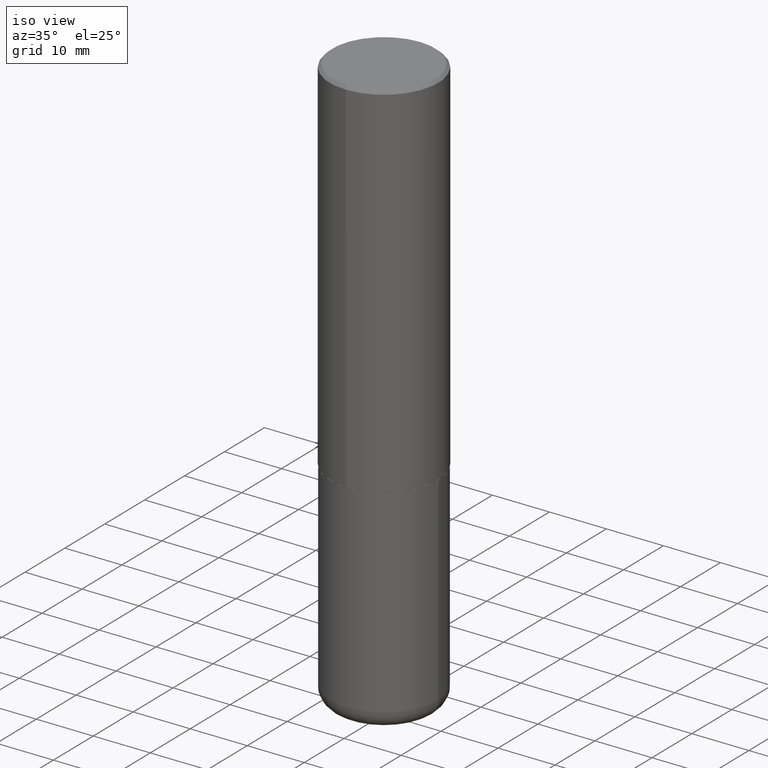
[diagram: clean part render]
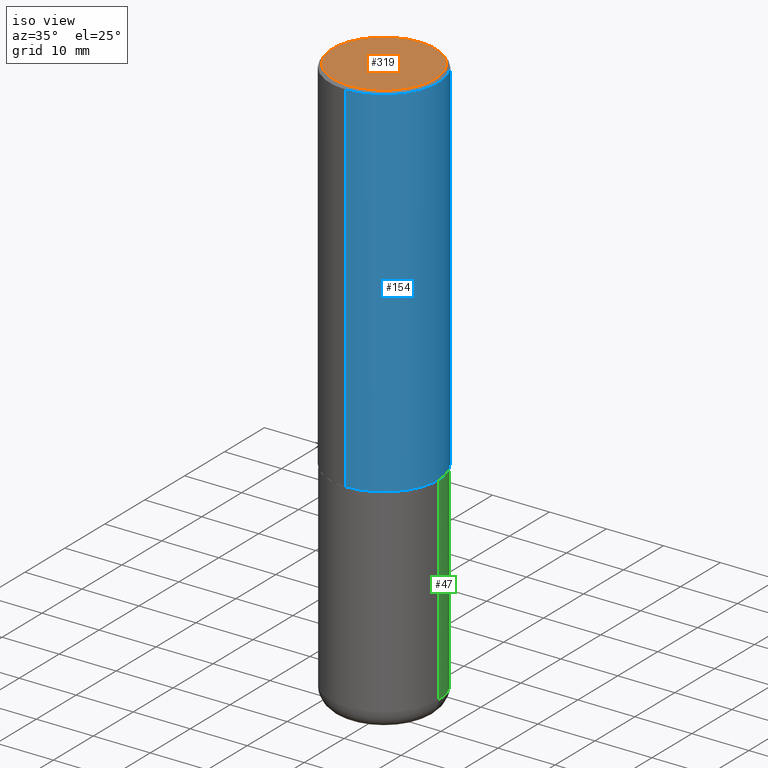
[diagram: same view with three faces highlighted in distinct colors, each labeled with its STEP entity id]
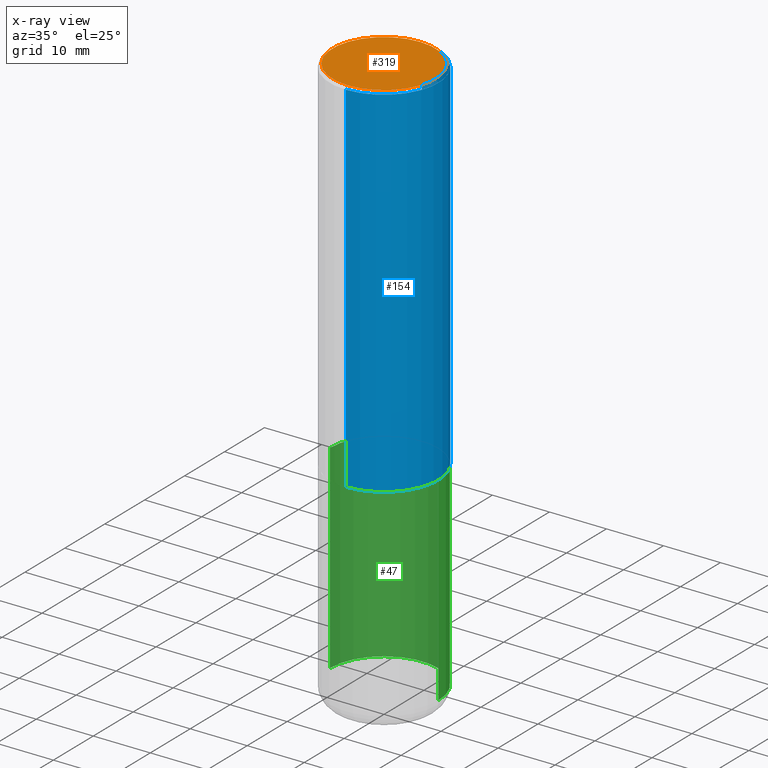
[diagram: x-ray of the same camera — body ghosted, the three highlighted faces saturated]
A machine part, iso view with three faces highlighted in distinct colors.
The next image is the same camera in x-ray (body ghosted, the three faces saturated) — at least one of them is partly hidden behind the body in this view.
Their STEP definitions:

[orange] entity #319 — the highlighted planar face has unit normal (0, -0, -1).
#6 = DIRECTION ( 'NONE',  ( 2.444465131706344694E-29, -3.492918657822378868E-15, -1.000000000000000000 ) ) ;
#23 = DIRECTION ( 'NONE',  ( -6.982962677686265922E-15, -1.000000000000000000, 3.492918657822378079E-15 ) ) ;
#25 = EDGE_CURVE ( 'NONE', #404, #343, #83, .T. ) ;
#26 = DIRECTION ( 'NONE',  ( 6.982962677686265922E-15, 1.000000000000000000, -3.492918657822378868E-15 ) ) ;
#32 = ORIENTED_EDGE ( 'NONE', *, *, #157, .T. ) ;
#43 = AXIS2_PLACEMENT_3D ( 'NONE', #405, #54, #23 ) ;
#54 = DIRECTION ( 'NONE',  ( -2.444465131706345255E-29, 3.492918657822378473E-15, 1.000000000000000000 ) ) ;
#78 = ORIENTED_EDGE ( 'NONE', *, *, #25, .T. ) ;
#83 = CIRCLE ( 'NONE', #114, 0.3549999999999999267 ) ;
#92 = CARTESIAN_POINT ( 'NONE',  ( -2.504081769186608216E-15, -0.3549999999999999267, 1.308792571606178433E-15 ) ) ;
#110 = DIRECTION ( 'NONE',  ( -2.444465131706345255E-29, 3.492918657822378473E-15, 1.000000000000000000 ) ) ;
#114 = AXIS2_PLACEMENT_3D ( 'NONE', #172, #110, #245 ) ;
#145 = CIRCLE ( 'NONE', #43, 0.3549999999999999267 ) ;
#157 = EDGE_CURVE ( 'NONE', #343, #404, #145, .T. ) ;
#158 = PLANE ( 'NONE',  #220 ) ;
#172 = CARTESIAN_POINT ( 'NONE',  ( -1.681949631662511627E-45, 2.403353262744440834E-31, 6.880644807923424831E-17 ) ) ;
#195 = FACE_OUTER_BOUND ( 'NONE', #239, .T. ) ;
#198 = CARTESIAN_POINT ( 'NONE',  ( 2.478951750578623815E-15, 0.3549999999999999267, -1.205582899487326820E-15 ) ) ;
#220 = AXIS2_PLACEMENT_3D ( 'NONE', #198, #6, #26 ) ;
#224 = CARTESIAN_POINT ( 'NONE',  ( 2.548781377355487113E-15, 0.3549999999999999267, -1.171179675447709813E-15 ) ) ;
#239 = EDGE_LOOP ( 'NONE', ( #78, #32 ) ) ;
#245 = DIRECTION ( 'NONE',  ( -6.982962677686265922E-15, -1.000000000000000000, 3.492918657822378079E-15 ) ) ;
#319 = ADVANCED_FACE ( 'NONE', ( #195 ), #158, .F. ) ;
#343 = VERTEX_POINT ( 'NONE', #92 ) ;
#404 = VERTEX_POINT ( 'NONE', #224 ) ;
#405 = CARTESIAN_POINT ( 'NONE',  ( -1.681949631662511627E-45, 2.403353262744440834E-31, 6.880644807923424831E-17 ) ) ;

[blue] entity #154 — the highlighted cylindrical surface (partial cylindrical patch) has radius 9.525 mm, axis along (-0, 0, 1).
#13 = VERTEX_POINT ( 'NONE', #76 ) ;
#21 = CARTESIAN_POINT ( 'NONE',  ( 0.000000000000000000, 0.000000000000000000, 0.000000000000000000 ) ) ;
#36 = VERTEX_POINT ( 'NONE', #269 ) ;
#74 = VERTEX_POINT ( 'NONE', #119 ) ;
#76 = CARTESIAN_POINT ( 'NONE',  ( 2.664535259100408040E-15, 0.3749999999999915623, -2.499000000000000998 ) ) ;
#82 = DIRECTION ( 'NONE',  ( -6.982962677686266711E-15, -1.000000000000000000, 3.492918657822378473E-15 ) ) ;
#88 = CARTESIAN_POINT ( 'NONE',  ( 4.888930263412711914E-31, -6.985837315644786578E-17, -0.02000000000000008715 ) ) ;
#95 = ORIENTED_EDGE ( 'NONE', *, *, #222, .F. ) ;
#96 = AXIS2_PLACEMENT_3D ( 'NONE', #246, #149, #183 ) ;
#112 = VERTEX_POINT ( 'NONE', #280 ) ;
#115 = VECTOR ( 'NONE', #291, 39.37007874015748143 ) ;
#119 = CARTESIAN_POINT ( 'NONE',  ( 2.618611004132350411E-15, 0.3749999999999999445, -0.02000000000000139513 ) ) ;
#121 = FACE_OUTER_BOUND ( 'NONE', #330, .T. ) ;
#129 = CARTESIAN_POINT ( 'NONE',  ( 2.664535259100376486E-15, 0.3750000000000001665, -1.309844496683392470E-15 ) ) ;
#131 = AXIS2_PLACEMENT_3D ( 'NONE', #88, #309, #312 ) ;
#149 = DIRECTION ( 'NONE',  ( -2.444465131706345255E-29, 3.492918657822378473E-15, 1.000000000000000000 ) ) ;
#154 = ADVANCED_FACE ( 'NONE', ( #121 ), #348, .T. ) ;
#178 = EDGE_CURVE ( 'NONE', #36, #13, #281, .T. ) ;
#183 = DIRECTION ( 'NONE',  ( -6.982962677686266711E-15, -1.000000000000000000, 2.913971193241878794E-15 ) ) ;
#184 = CIRCLE ( 'NONE', #131, 0.3750000000000000555 ) ;
#222 = EDGE_CURVE ( 'NONE', #112, #74, #184, .T. ) ;
#225 = AXIS2_PLACEMENT_3D ( 'NONE', #21, #278, #82 ) ;
#240 = VECTOR ( 'NONE', #284, 39.37007874015748143 ) ;
#243 = EDGE_CURVE ( 'NONE', #36, #112, #283, .T. ) ;
#246 = CARTESIAN_POINT ( 'NONE',  ( 6.108718364134156127E-29, -8.728803725898123939E-15, -2.498999999999999666 ) ) ;
#269 = CARTESIAN_POINT ( 'NONE',  ( -2.618611004132290852E-15, -0.3750000000000090483, -2.498999999999998778 ) ) ;
#271 = ORIENTED_EDGE ( 'NONE', *, *, #243, .F. ) ;
#278 = DIRECTION ( 'NONE',  ( -2.444465131706345255E-29, 3.492918657822378473E-15, 1.000000000000000000 ) ) ;
#280 = CARTESIAN_POINT ( 'NONE',  ( -2.572686749164323547E-15, -0.3750000000000001110, -0.01999999999999877570 ) ) ;
#281 = CIRCLE ( 'NONE', #96, 0.3750000000000002776 ) ;
#283 = LINE ( 'NONE', #349, #240 ) ;
#284 = DIRECTION ( 'NONE',  ( -2.444465131706345255E-29, 3.492918657822378868E-15, 1.000000000000000000 ) ) ;
#291 = DIRECTION ( 'NONE',  ( -2.444465131706345255E-29, 3.492918657822378868E-15, 1.000000000000000000 ) ) ;
#309 = DIRECTION ( 'NONE',  ( -2.444465131706345255E-29, 3.492918657822378473E-15, 1.000000000000000000 ) ) ;
#312 = DIRECTION ( 'NONE',  ( -6.982962677686265922E-15, -1.000000000000000000, 3.494488891895536035E-15 ) ) ;
#330 = EDGE_LOOP ( 'NONE', ( #394, #371, #95, #271 ) ) ;
#348 = CYLINDRICAL_SURFACE ( 'NONE', #225, 0.3750000000000001665 ) ;
#349 = CARTESIAN_POINT ( 'NONE',  ( -2.618611004132351200E-15, -0.3750000000000001665, 1.309844496683392470E-15 ) ) ;
#371 = ORIENTED_EDGE ( 'NONE', *, *, #403, .T. ) ;
#394 = ORIENTED_EDGE ( 'NONE', *, *, #178, .T. ) ;
#403 = EDGE_CURVE ( 'NONE', #13, #74, #417, .T. ) ;
#417 = LINE ( 'NONE', #129, #115 ) ;

[green] entity #47 — the highlighted cylindrical surface (partial cylindrical patch) has radius 9.525 mm, axis along (-0, 0, 1).
#7 = VERTEX_POINT ( 'NONE', #39 ) ;
#19 = DIRECTION ( 'NONE',  ( 1.000000000000000000, -6.982962677686263555E-15, 0.000000000000000000 ) ) ;
#20 = DIRECTION ( 'NONE',  ( -2.445468806185136597E-29, 3.491481338843145583E-15, 1.000000000000000000 ) ) ;
#24 = DIRECTION ( 'NONE',  ( -2.445468806185136597E-29, 3.491481338843145583E-15, 1.000000000000000000 ) ) ;
#39 = CARTESIAN_POINT ( 'NONE',  ( -0.3749999999999999445, -1.086495492891681496E-14, -3.875000000000000000 ) ) ;
#47 = ADVANCED_FACE ( 'NONE', ( #237 ), #277, .T. ) ;
#55 = CARTESIAN_POINT ( 'NONE',  ( -0.3750000000000000555, -8.464561508462150527E-15, -2.499999999999999556 ) ) ;
#81 = EDGE_CURVE ( 'NONE', #236, #102, #413, .T. ) ;
#100 = ORIENTED_EDGE ( 'NONE', *, *, #362, .T. ) ;
#102 = VERTEX_POINT ( 'NONE', #55 ) ;
#136 = VECTOR ( 'NONE', #193, 39.37007874015748143 ) ;
#146 = ORIENTED_EDGE ( 'NONE', *, *, #345, .F. ) ;
#148 = EDGE_CURVE ( 'NONE', #244, #7, #165, .T. ) ;
#165 = CIRCLE ( 'NONE', #235, 0.3749999999999999445 ) ;
#177 = DIRECTION ( 'NONE',  ( 1.000000000000000000, -6.982962677686266711E-15, 4.876176775795935793E-29 ) ) ;
#193 = DIRECTION ( 'NONE',  ( -2.445468806185136877E-29, 3.491481338843145188E-15, 1.000000000000000000 ) ) ;
#221 = LINE ( 'NONE', #229, #136 ) ;
#229 = CARTESIAN_POINT ( 'NONE',  ( -0.3749999999999999445, 2.664535259100375303E-15, -1.844600658845589318E-29 ) ) ;
#235 = AXIS2_PLACEMENT_3D ( 'NONE', #308, #20, #19 ) ;
#236 = VERTEX_POINT ( 'NONE', #250 ) ;
#237 = FACE_OUTER_BOUND ( 'NONE', #260, .T. ) ;
#244 = VERTEX_POINT ( 'NONE', #315 ) ;
#250 = CARTESIAN_POINT ( 'NONE',  ( 0.3750000000000000555, -1.134731435124021180E-14, -2.499999999999999556 ) ) ;
#260 = EDGE_LOOP ( 'NONE', ( #366, #100, #296, #146 ) ) ;
#277 = CYLINDRICAL_SURFACE ( 'NONE', #306, 0.3749999999999999445 ) ;
#287 = CARTESIAN_POINT ( 'NONE',  ( 0.3749999999999999445, -2.618611004132349622E-15, 1.828566290923475642E-29 ) ) ;
#296 = ORIENTED_EDGE ( 'NONE', *, *, #81, .F. ) ;
#306 = AXIS2_PLACEMENT_3D ( 'NONE', #373, #337, #177 ) ;
#308 = CARTESIAN_POINT ( 'NONE',  ( 9.476191623967404313E-29, -1.352949018801718908E-14, -3.875000000000000000 ) ) ;
#310 = DIRECTION ( 'NONE',  ( 1.000000000000000000, -6.982962677686264344E-15, 0.000000000000000000 ) ) ;
#315 = CARTESIAN_POINT ( 'NONE',  ( 0.3749999999999999445, -1.614810119214953752E-14, -3.875000000000000000 ) ) ;
#337 = DIRECTION ( 'NONE',  ( -2.445468806185136597E-29, 3.491481338843145583E-15, 1.000000000000000000 ) ) ;
#345 = EDGE_CURVE ( 'NONE', #244, #236, #387, .T. ) ;
#352 = CARTESIAN_POINT ( 'NONE',  ( 6.113672015462840371E-29, -8.728703347107863365E-15, -2.499999999999999556 ) ) ;
#356 = AXIS2_PLACEMENT_3D ( 'NONE', #352, #24, #310 ) ;
#357 = VECTOR ( 'NONE', #384, 39.37007874015748143 ) ;
#362 = EDGE_CURVE ( 'NONE', #7, #102, #221, .T. ) ;
#366 = ORIENTED_EDGE ( 'NONE', *, *, #148, .T. ) ;
#373 = CARTESIAN_POINT ( 'NONE',  ( 0.000000000000000000, 0.000000000000000000, 0.000000000000000000 ) ) ;
#384 = DIRECTION ( 'NONE',  ( -2.445468806185136877E-29, 3.491481338843145188E-15, 1.000000000000000000 ) ) ;
#387 = LINE ( 'NONE', #287, #357 ) ;
#413 = CIRCLE ( 'NONE', #356, 0.3750000000000000555 ) ;